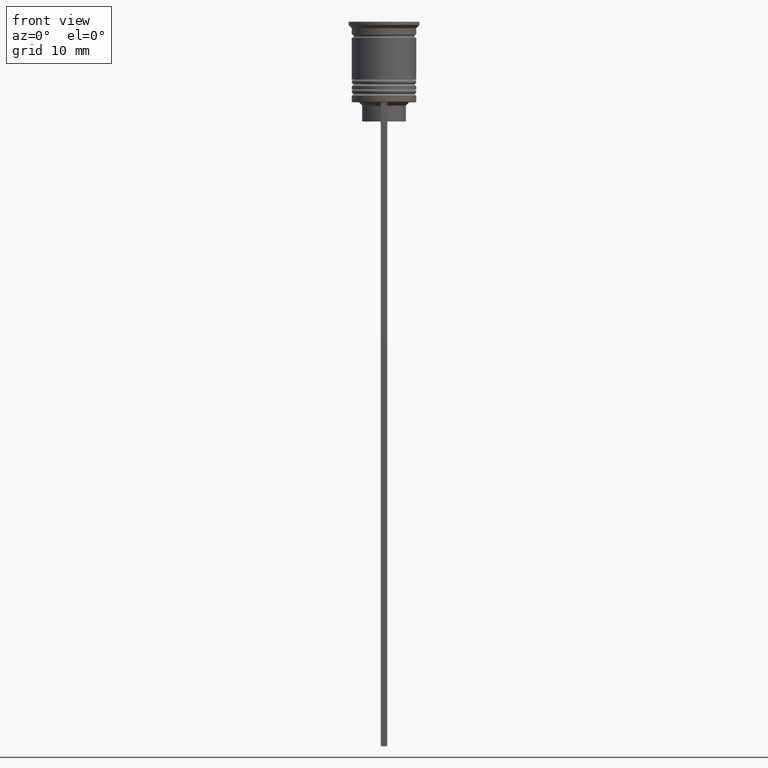
[diagram: clean part render]
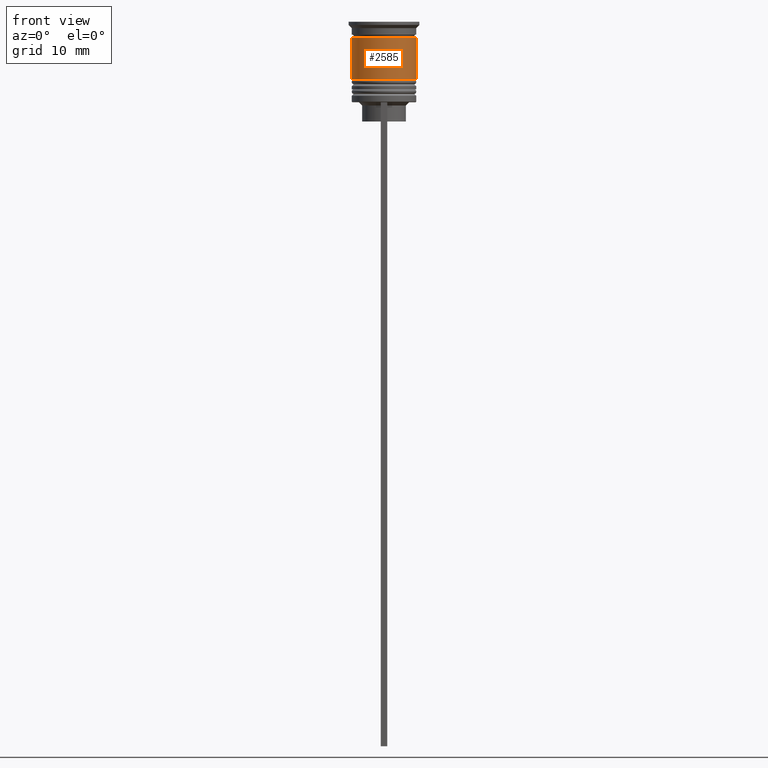
[diagram: same view with one face highlighted and labeled with its STEP entity id]
A machine part, front view. The second image highlights one B-rep face of the part: STEP entity #2585.
In plain terms, the highlighted cylindrical surface (edge-blend (fillet) strip) has radius 5 mm, axis along (-0, -0, 1).
Its self-contained STEP definition (entity closure, byte-faithful):
#273 = ORIENTED_EDGE ( 'NONE', *, *, #1224, .T. ) ;
#423 = CYLINDRICAL_SURFACE ( 'NONE', #1113, 5.000000000000000000 ) ;
#434 = DIRECTION ( 'NONE',  ( 1.000000000000000000, 0.000000000000000000, 0.000000000000000000 ) ) ;
#446 = CARTESIAN_POINT ( 'NONE',  ( -5.000000000000000888, 6.123233995736767268E-16, -9.000000000000001776 ) ) ;
#555 = EDGE_LOOP ( 'NONE', ( #1771, #1383, #273, #1477 ) ) ;
#590 = CARTESIAN_POINT ( 'NONE',  ( 0.000000000000000000, 0.000000000000000000, 0.000000000000000000 ) ) ;
#609 = CARTESIAN_POINT ( 'NONE',  ( 0.000000000000000000, 0.000000000000000000, -9.000000000000001776 ) ) ;
#675 = DIRECTION ( 'NONE',  ( 1.000000000000000000, 0.000000000000000000, 0.000000000000000000 ) ) ;
#736 = LINE ( 'NONE', #1928, #2223 ) ;
#811 = LINE ( 'NONE', #1557, #1978 ) ;
#850 = CARTESIAN_POINT ( 'NONE',  ( 4.999999999999999112, 0.000000000000000000, -2.500000000000000000 ) ) ;
#882 = CARTESIAN_POINT ( 'NONE',  ( -4.999999999999999112, 6.123233995736766282E-16, -2.500000000000000000 ) ) ;
#1038 = CIRCLE ( 'NONE', #1706, 5.000000000000000888 ) ;
#1113 = AXIS2_PLACEMENT_3D ( 'NONE', #590, #1379, #434 ) ;
#1147 = DIRECTION ( 'NONE',  ( -0.000000000000000000, -0.000000000000000000, 1.000000000000000000 ) ) ;
#1181 = VERTEX_POINT ( 'NONE', #446 ) ;
#1224 = EDGE_CURVE ( 'NONE', #1689, #1441, #736, .T. ) ;
#1379 = DIRECTION ( 'NONE',  ( -0.000000000000000000, -0.000000000000000000, 1.000000000000000000 ) ) ;
#1383 = ORIENTED_EDGE ( 'NONE', *, *, #1399, .T. ) ;
#1399 = EDGE_CURVE ( 'NONE', #1181, #1689, #1038, .T. ) ;
#1403 = DIRECTION ( 'NONE',  ( 1.000000000000000000, 0.000000000000000000, 0.000000000000000000 ) ) ;
#1441 = VERTEX_POINT ( 'NONE', #850 ) ;
#1477 = ORIENTED_EDGE ( 'NONE', *, *, #2341, .F. ) ;
#1499 = CARTESIAN_POINT ( 'NONE',  ( 0.000000000000000000, 0.000000000000000000, -2.500000000000000000 ) ) ;
#1557 = CARTESIAN_POINT ( 'NONE',  ( -5.000000000000000000, 6.123233995736766282E-16, 0.000000000000000000 ) ) ;
#1689 = VERTEX_POINT ( 'NONE', #2112 ) ;
#1706 = AXIS2_PLACEMENT_3D ( 'NONE', #609, #2377, #1403 ) ;
#1771 = ORIENTED_EDGE ( 'NONE', *, *, #1789, .F. ) ;
#1789 = EDGE_CURVE ( 'NONE', #1181, #2406, #811, .T. ) ;
#1804 = DIRECTION ( 'NONE',  ( -0.000000000000000000, -0.000000000000000000, 1.000000000000000000 ) ) ;
#1928 = CARTESIAN_POINT ( 'NONE',  ( 5.000000000000000000, 0.000000000000000000, 0.000000000000000000 ) ) ;
#1978 = VECTOR ( 'NONE', #1804, 1000.000000000000000 ) ;
#2024 = FACE_OUTER_BOUND ( 'NONE', #555, .T. ) ;
#2081 = CIRCLE ( 'NONE', #2124, 4.999999999999999112 ) ;
#2112 = CARTESIAN_POINT ( 'NONE',  ( 5.000000000000000888, 0.000000000000000000, -9.000000000000001776 ) ) ;
#2124 = AXIS2_PLACEMENT_3D ( 'NONE', #1499, #2314, #675 ) ;
#2223 = VECTOR ( 'NONE', #1147, 1000.000000000000000 ) ;
#2314 = DIRECTION ( 'NONE',  ( -0.000000000000000000, -0.000000000000000000, 1.000000000000000000 ) ) ;
#2341 = EDGE_CURVE ( 'NONE', #2406, #1441, #2081, .T. ) ;
#2377 = DIRECTION ( 'NONE',  ( -0.000000000000000000, -0.000000000000000000, 1.000000000000000000 ) ) ;
#2406 = VERTEX_POINT ( 'NONE', #882 ) ;
#2585 = ADVANCED_FACE ( 'NONE', ( #2024 ), #423, .T. ) ;